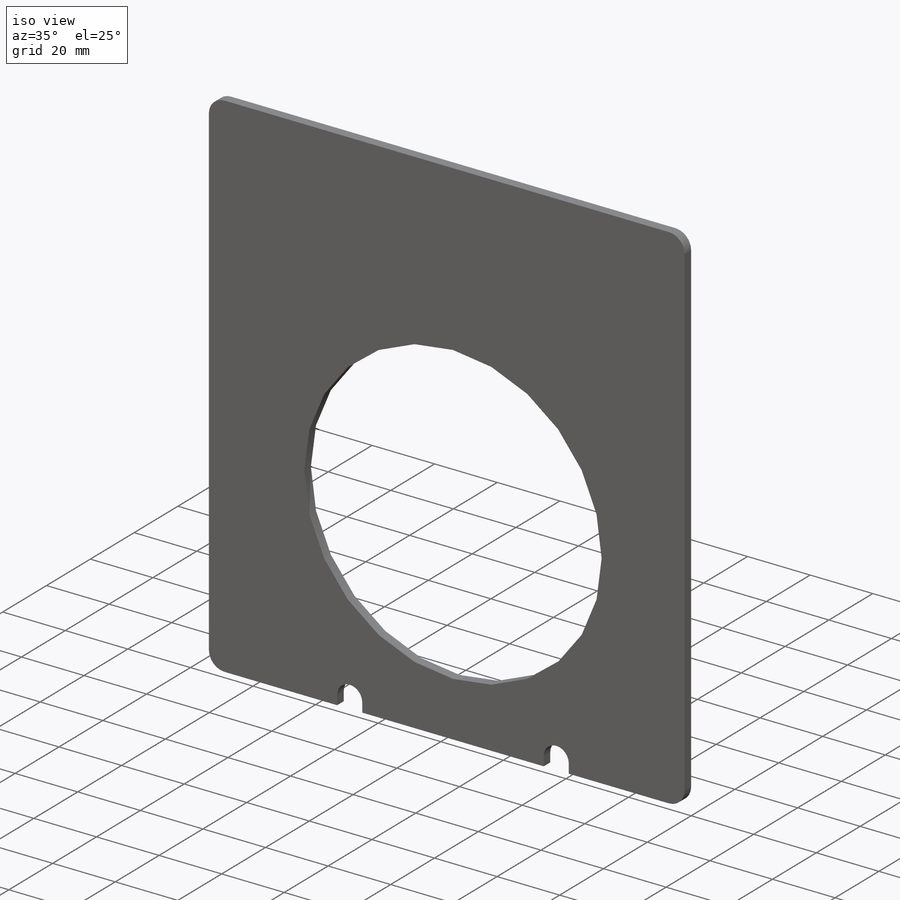
[diagram: iso view]
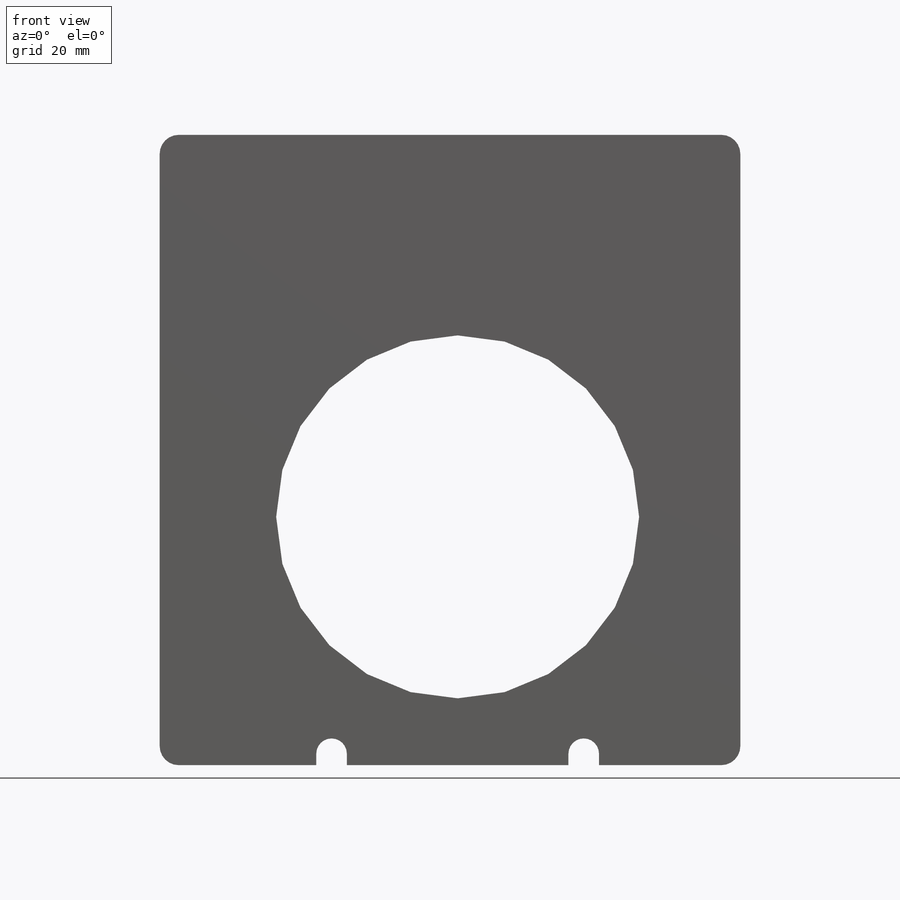
[diagram: front view]
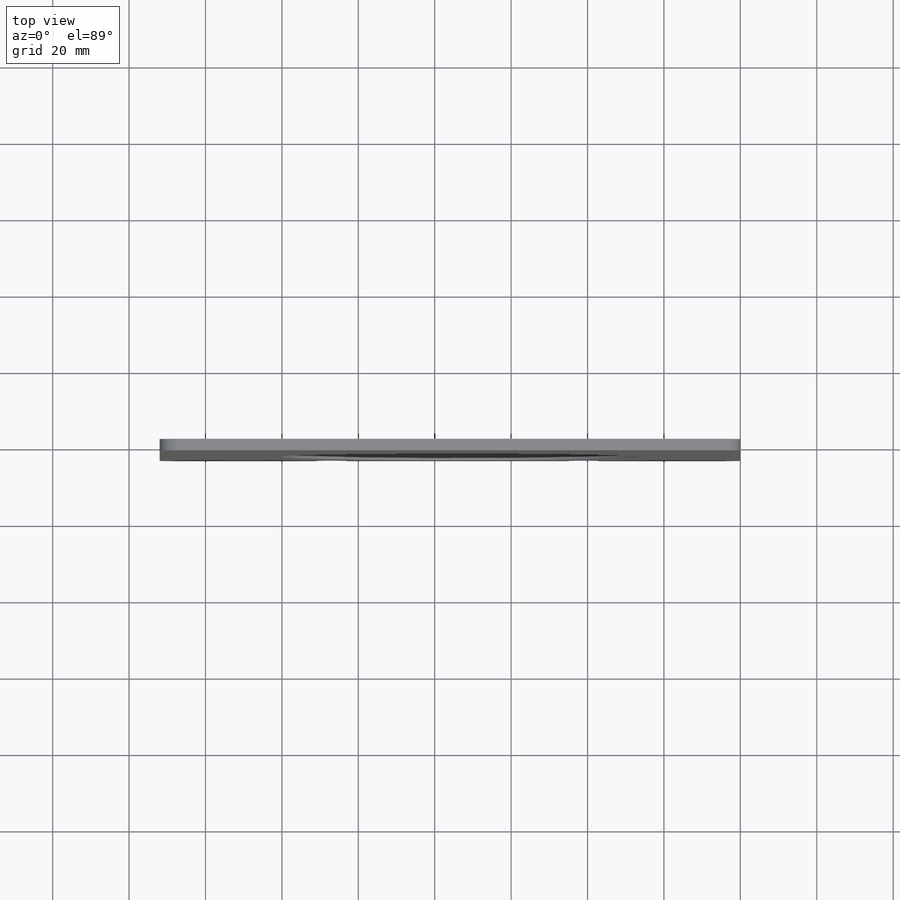
[diagram: top view]
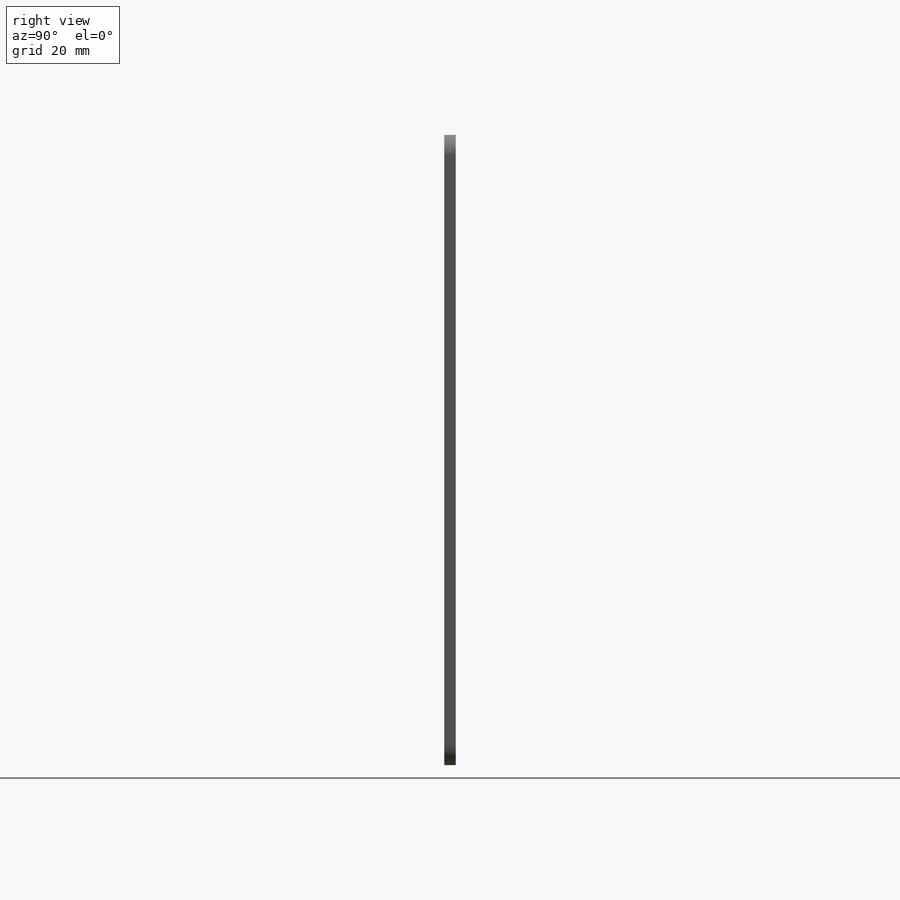
[diagram: right view]
SOLIDWORKS PART (.sldprt)
format: sldprt  version: not decoded by parser v0  size: 214,528 bytes
history: native  units: mm
features: plane x3, sketch x3, cut_extrude x2, material x1, extrude x1, fillet x1 (+10 scaffold rows collapsed)
feature tree (21):
  scaffold x10  (default folders/planes/origin — collapsed)
  material  "Matériau <non spécifié>"
  plane  "Face"
  plane  "Dessus"
  plane  "Droite"
  sketch  "Esquisse1"  dims[D1=152.0mm D2=165.0mm]
  extrude  "Boss.-Extru.1"  Depth=3mm
  fillet  "Congé1"  Radius=5mm
  sketch  "Esquisse2"  dims[c1.D1=95.0mm c1.D2=98.0mm c1.D3=98.0mm c1.D4=98.0mm c2.D2=65.0mm c2.D3=78.0mm c2.D4=73.0mm]
  cut_extrude  "Enlèv. mat.-Extru.1"  Depth=3mm
  sketch  "Esquisse3"  dims[D1=8.0mm D2=8.0mm D3=6.0mm D4=6.0mm D5=41.0mm D6=45.0mm D7=65.0mm]
  cut_extrude  "Enlèv. mat.-Extru.2"  Depth=3mm
decode coverage: 7 of 7 modeling features carry decoded parameters
note: suppression state not decoded; provenance and decode notes live in map.json
